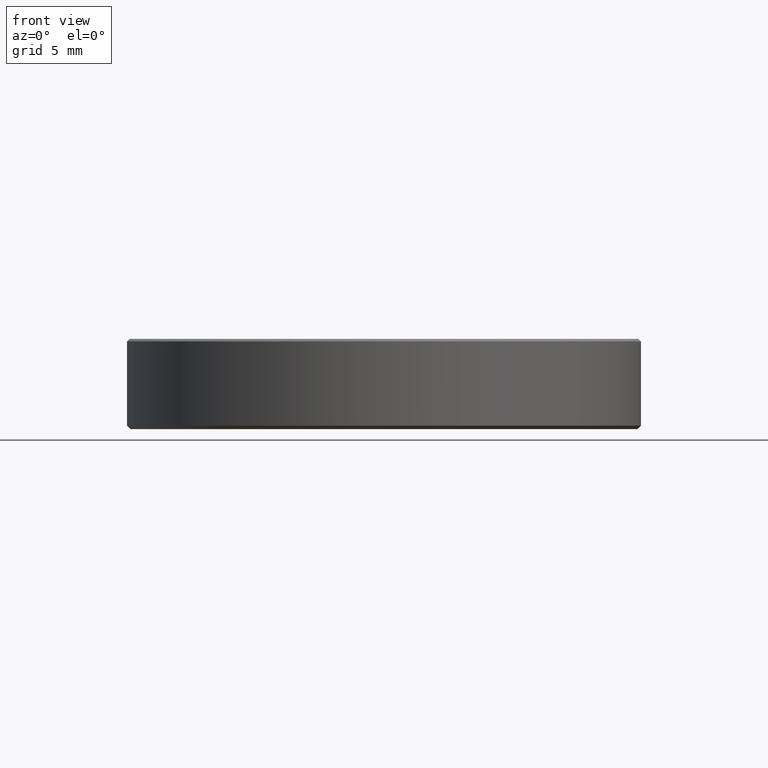
[diagram: clean part render]
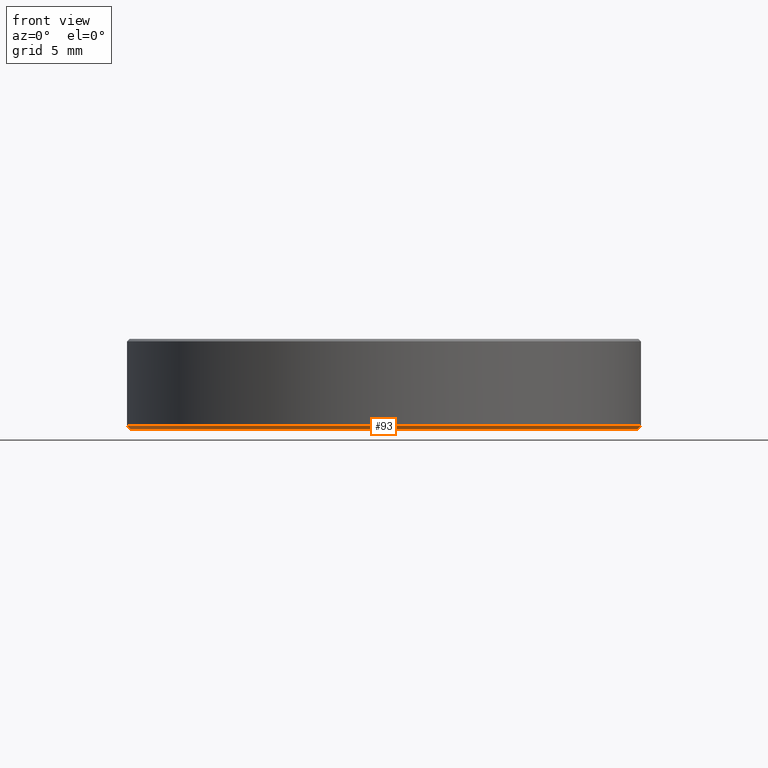
[diagram: same view with one face highlighted and labeled with its STEP entity id]
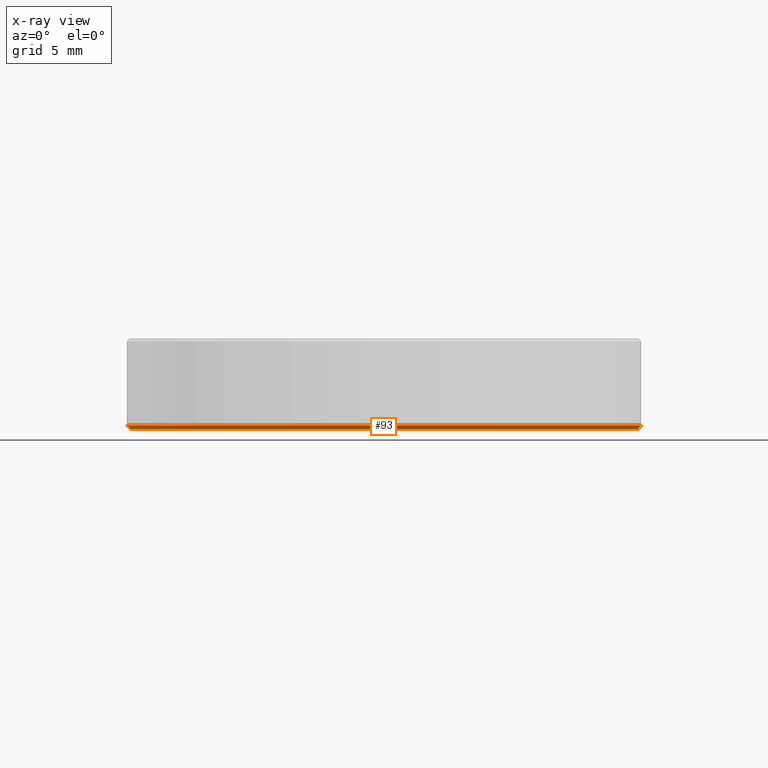
[diagram: x-ray of the same camera — body ghosted, the highlighted face saturated]
A machine part, front view. The second image highlights one B-rep face of the part: STEP entity #93.
The next image is the same camera in x-ray: the body ghosted, the highlighted face saturated — about 0% of this face is hidden behind the body in this view.
In plain terms, the highlighted conical surface has half-angle 45 deg.
Its self-contained STEP definition (entity closure, byte-faithful):
#2 = ORIENTED_EDGE ( 'NONE', *, *, #79, .F. ) ;
#3 = AXIS2_PLACEMENT_3D ( 'NONE', #100, #265, #137 ) ;
#4 = LINE ( 'NONE', #237, #114 ) ;
#16 = CARTESIAN_POINT ( 'NONE',  ( 14.79999999999999361, 0.000000000000000000, 9.184850993605147944E-16 ) ) ;
#27 = EDGE_CURVE ( 'NONE', #193, #191, #4, .T. ) ;
#30 = VERTEX_POINT ( 'NONE', #92 ) ;
#31 = CARTESIAN_POINT ( 'NONE',  ( 0.000000000000000000, 0.000000000000000000, 0.2000000000000048683 ) ) ;
#33 = CARTESIAN_POINT ( 'NONE',  ( -14.79999999999999361, 1.824723730729555837E-15, 9.184850993605147944E-16 ) ) ;
#37 = DIRECTION ( 'NONE',  ( 1.000000000000000000, 0.000000000000000000, 0.000000000000000000 ) ) ;
#52 = FACE_OUTER_BOUND ( 'NONE', #96, .T. ) ;
#68 = ORIENTED_EDGE ( 'NONE', *, *, #238, .F. ) ;
#79 = EDGE_CURVE ( 'NONE', #193, #132, #139, .T. ) ;
#90 = ORIENTED_EDGE ( 'NONE', *, *, #27, .T. ) ;
#92 = CARTESIAN_POINT ( 'NONE',  ( -15.00000000000000000, 1.836970198721029589E-15, 0.2000000000000048683 ) ) ;
#93 = ADVANCED_FACE ( 'NONE', ( #52 ), #205, .T. ) ;
#95 = DIRECTION ( 'NONE',  ( 0.7071067811865505703, 0.000000000000000000, 0.7071067811865444641 ) ) ;
#96 = EDGE_LOOP ( 'NONE', ( #68, #2, #90, #129 ) ) ;
#100 = CARTESIAN_POINT ( 'NONE',  ( 0.000000000000000000, 0.000000000000000000, 9.184850993605147944E-16 ) ) ;
#105 = CARTESIAN_POINT ( 'NONE',  ( -15.00000000000000000, 1.836970198721029589E-15, 0.2000000000000048683 ) ) ;
#114 = VECTOR ( 'NONE', #95, 1000.000000000000000 ) ;
#115 = DIRECTION ( 'NONE',  ( -0.000000000000000000, -0.000000000000000000, 1.000000000000000000 ) ) ;
#117 = EDGE_CURVE ( 'NONE', #30, #191, #187, .T. ) ;
#122 = AXIS2_PLACEMENT_3D ( 'NONE', #247, #180, #37 ) ;
#129 = ORIENTED_EDGE ( 'NONE', *, *, #117, .F. ) ;
#132 = VERTEX_POINT ( 'NONE', #33 ) ;
#137 = DIRECTION ( 'NONE',  ( 1.000000000000000000, 0.000000000000000000, 0.000000000000000000 ) ) ;
#139 = CIRCLE ( 'NONE', #3, 14.79999999999999361 ) ;
#148 = LINE ( 'NONE', #105, #177 ) ;
#164 = CARTESIAN_POINT ( 'NONE',  ( 15.00000000000000000, 0.000000000000000000, 0.2000000000000048683 ) ) ;
#177 = VECTOR ( 'NONE', #224, 1000.000000000000000 ) ;
#180 = DIRECTION ( 'NONE',  ( -0.000000000000000000, -0.000000000000000000, 1.000000000000000000 ) ) ;
#187 = CIRCLE ( 'NONE', #223, 15.00000000000000000 ) ;
#191 = VERTEX_POINT ( 'NONE', #164 ) ;
#193 = VERTEX_POINT ( 'NONE', #16 ) ;
#195 = DIRECTION ( 'NONE',  ( 1.000000000000000000, 0.000000000000000000, 0.000000000000000000 ) ) ;
#205 = CONICAL_SURFACE ( 'NONE', #122, 15.00000000000000000, 0.7853981633974526089 ) ;
#223 = AXIS2_PLACEMENT_3D ( 'NONE', #31, #115, #195 ) ;
#224 = DIRECTION ( 'NONE',  ( -0.7071067811865505703, 8.659560562354969836E-17, 0.7071067811865444641 ) ) ;
#237 = CARTESIAN_POINT ( 'NONE',  ( 15.00000000000000000, 0.000000000000000000, 0.2000000000000048683 ) ) ;
#238 = EDGE_CURVE ( 'NONE', #132, #30, #148, .T. ) ;
#247 = CARTESIAN_POINT ( 'NONE',  ( 0.000000000000000000, 0.000000000000000000, 0.2000000000000048683 ) ) ;
#265 = DIRECTION ( 'NONE',  ( 0.000000000000000000, 0.000000000000000000, -1.000000000000000000 ) ) ;